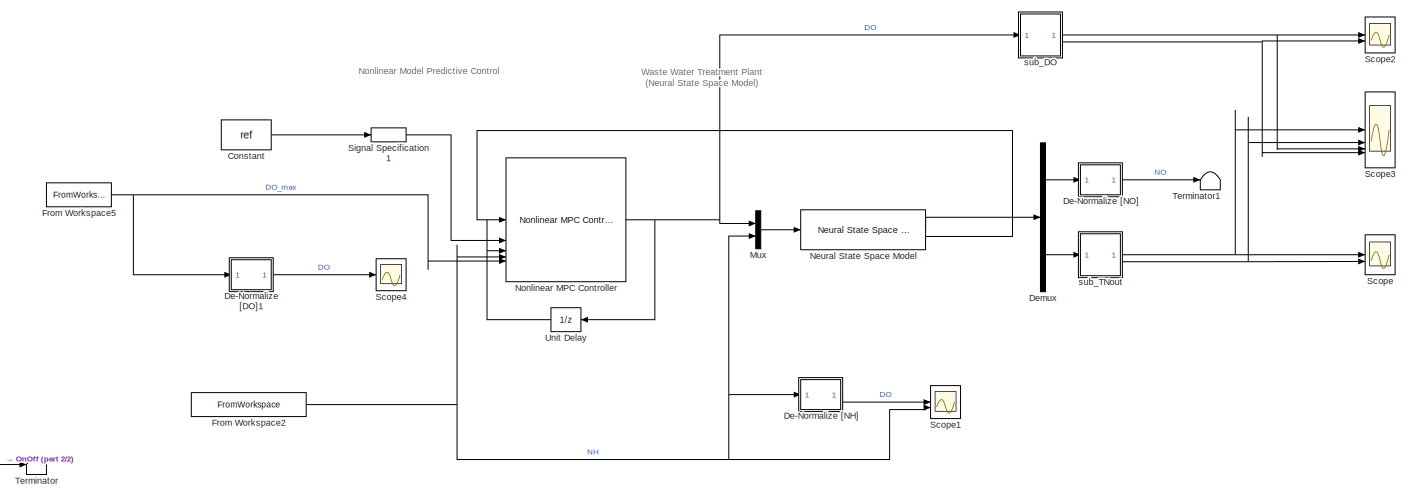
[diagram: root canvas - part 1/2, most of the canvas]
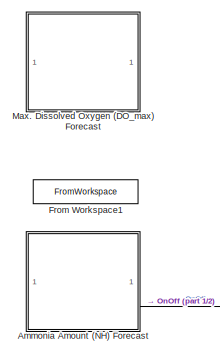
[diagram: root canvas - part 2/2, middle left region]
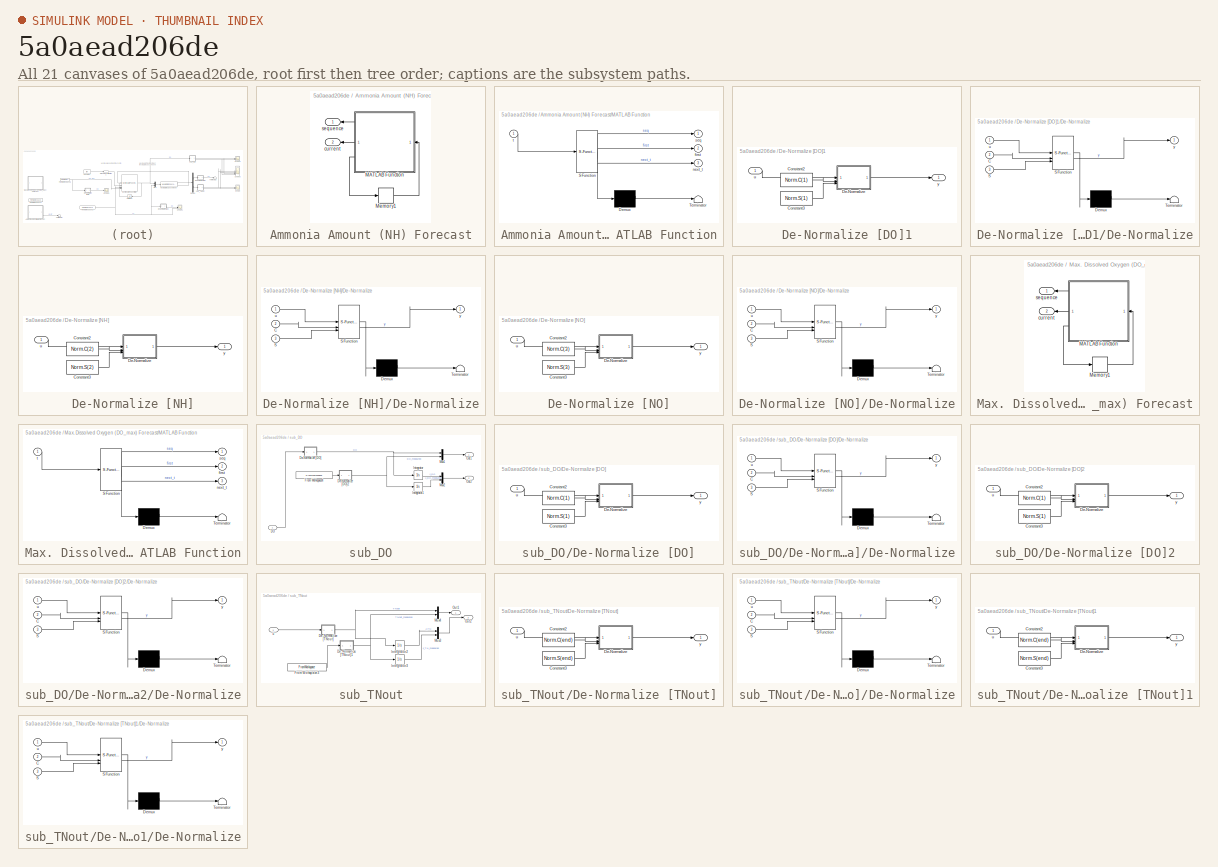
[diagram: thumbnail index - all 21 canvases of the model, root first then tree order]
MODEL slx_5a0aead206de
KIND model
CONFIG AbsTol = auto
CONFIG EnableMultiTasking = off
CONFIG FixedStep = Ts
CONFIG InitFcn = Init_Model;
CONFIG MaxStep = auto
CONFIG MinStep = auto
CONFIG RelTol = 1e-3
CONFIG SampleTimeConstraint = Unconstrained
CONFIG SolverName = ode5
CONFIG StartFcn = Init_Model;
CONFIG StartTime = 0
CONFIG StopTime = 7
BLOCK [SubSystem] Ammonia Amount (NH) Forecast
  Commented = on
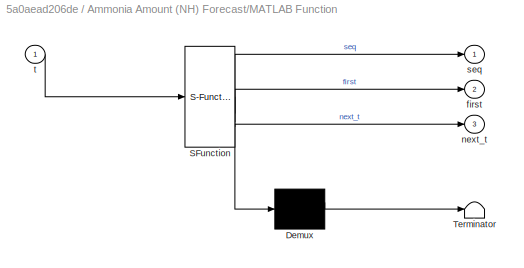
BLOCK [SubSystem] Ammonia Amount (NH) Forecast/MATLAB Function
  ErrorFcn = Stateflow.Translate.translate
  PermitHierarchicalResolution = ExplicitOnly
  SFBlockType = MATLAB Function
  TreatAsAtomicUnit = on
BLOCK [Demux] Ammonia Amount (NH) Forecast/MATLAB Function/ Demux 
  Outputs = 1
BLOCK [S-Function] Ammonia Amount (NH) Forecast/MATLAB Function/ SFunction 
  EnableBusSupport = on
  FunctionName = sf_sfun
  Parameters = data,steps
  PortCounts = [1 4]
  SFcnIsStateOwnerBlock = off
  SFunctionDeploymentMode = off
  Tag = Stateflow S-Function 6
BLOCK [Terminator] Ammonia Amount (NH) Forecast/MATLAB Function/ Terminator 
BLOCK [Outport] Ammonia Amount (NH) Forecast/MATLAB Function/first
  Port = 2
  VectorParamsAs1DForOutWhenUnconnected = off
BLOCK [Outport] Ammonia Amount (NH) Forecast/MATLAB Function/next_t
  Port = 3
  VectorParamsAs1DForOutWhenUnconnected = off
BLOCK [Outport] Ammonia Amount (NH) Forecast/MATLAB Function/seq
  VectorParamsAs1DForOutWhenUnconnected = off
BLOCK [Inport] Ammonia Amount (NH) Forecast/MATLAB Function/t
BLOCK [Memory] Ammonia Amount (NH) Forecast/Memory1
  InheritSampleTime = on
  LinearizeAsDelay = on
BLOCK [Outport] Ammonia Amount (NH) Forecast/current
  Port = 2
  VectorParamsAs1DForOutWhenUnconnected = off
BLOCK [Outport] Ammonia Amount (NH) Forecast/sequence
  VectorParamsAs1DForOutWhenUnconnected = off
BLOCK [Constant] Constant
  Value = ref
BLOCK [SubSystem] De-Normalize [DO]1
BLOCK [Constant] De-Normalize [DO]1/Constant2
  Value = Norm.C(1)
BLOCK [Constant] De-Normalize [DO]1/Constant3
  Value = Norm.S(1)
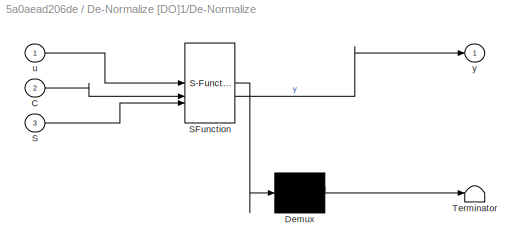
BLOCK [SubSystem] De-Normalize [DO]1/De-Normalize
  ErrorFcn = Stateflow.Translate.translate
  PermitHierarchicalResolution = ExplicitOnly
  SFBlockType = MATLAB Function
  TreatAsAtomicUnit = on
BLOCK [Demux] De-Normalize [DO]1/De-Normalize/ Demux 
  Outputs = 1
BLOCK [S-Function] De-Normalize [DO]1/De-Normalize/ SFunction 
  EnableBusSupport = on
  FunctionName = sf_sfun
  PortCounts = [3 2]
  SFcnIsStateOwnerBlock = off
  SFunctionDeploymentMode = off
  Tag = Stateflow S-Function 10
BLOCK [Terminator] De-Normalize [DO]1/De-Normalize/ Terminator 
BLOCK [Inport] De-Normalize [DO]1/De-Normalize/C
  Port = 2
BLOCK [Inport] De-Normalize [DO]1/De-Normalize/S
  Port = 3
BLOCK [Inport] De-Normalize [DO]1/De-Normalize/u
BLOCK [Outport] De-Normalize [DO]1/De-Normalize/y
BLOCK [Inport] De-Normalize [DO]1/u
BLOCK [Outport] De-Normalize [DO]1/y
BLOCK [SubSystem] De-Normalize [NH]
BLOCK [Constant] De-Normalize [NH]/Constant2
  Value = Norm.C(2)
BLOCK [Constant] De-Normalize [NH]/Constant3
  Value = Norm.S(2)
BLOCK [SubSystem] De-Normalize [NH]/De-Normalize
  ErrorFcn = Stateflow.Translate.translate
  PermitHierarchicalResolution = ExplicitOnly
  SFBlockType = MATLAB Function
  TreatAsAtomicUnit = on
BLOCK [Demux] De-Normalize [NH]/De-Normalize/ Demux 
  Outputs = 1
BLOCK [S-Function] De-Normalize [NH]/De-Normalize/ SFunction 
  EnableBusSupport = on
  FunctionName = sf_sfun
  PortCounts = [3 2]
  SFcnIsStateOwnerBlock = off
  SFunctionDeploymentMode = off
  Tag = Stateflow S-Function 9
BLOCK [Terminator] De-Normalize [NH]/De-Normalize/ Terminator 
BLOCK [Inport] De-Normalize [NH]/De-Normalize/C
  Port = 2
BLOCK [Inport] De-Normalize [NH]/De-Normalize/S
  Port = 3
BLOCK [Inport] De-Normalize [NH]/De-Normalize/u
BLOCK [Outport] De-Normalize [NH]/De-Normalize/y
BLOCK [Inport] De-Normalize [NH]/u
BLOCK [Outport] De-Normalize [NH]/y
BLOCK [SubSystem] De-Normalize [NO]
BLOCK [Constant] De-Normalize [NO]/Constant2
  Value = Norm.C(3)
BLOCK [Constant] De-Normalize [NO]/Constant3
  Value = Norm.S(3)
BLOCK [SubSystem] De-Normalize [NO]/De-Normalize
  ErrorFcn = Stateflow.Translate.translate
  PermitHierarchicalResolution = ExplicitOnly
  SFBlockType = MATLAB Function
  TreatAsAtomicUnit = on
BLOCK [Demux] De-Normalize [NO]/De-Normalize/ Demux 
  Outputs = 1
BLOCK [S-Function] De-Normalize [NO]/De-Normalize/ SFunction 
  EnableBusSupport = on
  FunctionName = sf_sfun
  PortCounts = [3 2]
  SFcnIsStateOwnerBlock = off
  SFunctionDeploymentMode = off
  Tag = Stateflow S-Function 1
BLOCK [Terminator] De-Normalize [NO]/De-Normalize/ Terminator 
BLOCK [Inport] De-Normalize [NO]/De-Normalize/C
  Port = 2
BLOCK [Inport] De-Normalize [NO]/De-Normalize/S
  Port = 3
BLOCK [Inport] De-Normalize [NO]/De-Normalize/u
BLOCK [Outport] De-Normalize [NO]/De-Normalize/y
BLOCK [Inport] De-Normalize [NO]/u
BLOCK [Outport] De-Normalize [NO]/y
BLOCK [Demux] Demux
  Outputs = 2
BLOCK [FromWorkspace] From Workspace1
  Commented = on
  VariableName = [DataRep(:,1),NH_simpl]
BLOCK [FromWorkspace] From Workspace2
  VariableName = [DataRep(:,1),DataRep(:,3)]
BLOCK [FromWorkspace] From Workspace5
  VariableName = DOMAX
BLOCK [SubSystem] Max. Dissolved Oxygen (DO_max) Forecast
  Commented = on
BLOCK [SubSystem] Max. Dissolved Oxygen (DO_max) Forecast/MATLAB Function
  ErrorFcn = Stateflow.Translate.translate
  PermitHierarchicalResolution = ExplicitOnly
  SFBlockType = MATLAB Function
  TreatAsAtomicUnit = on
BLOCK [Demux] Max. Dissolved Oxygen (DO_max) Forecast/MATLAB Function/ Demux 
  Outputs = 1
BLOCK [S-Function] Max. Dissolved Oxygen (DO_max) Forecast/MATLAB Function/ SFunction 
  EnableBusSupport = on
  FunctionName = sf_sfun
  Parameters = data,steps
  PortCounts = [1 4]
  SFcnIsStateOwnerBlock = off
  SFunctionDeploymentMode = off
  Tag = Stateflow S-Function 5
BLOCK [Terminator] Max. Dissolved Oxygen (DO_max) Forecast/MATLAB Function/ Terminator 
BLOCK [Outport] Max. Dissolved Oxygen (DO_max) Forecast/MATLAB Function/first
  Port = 2
  VectorParamsAs1DForOutWhenUnconnected = off
BLOCK [Outport] Max. Dissolved Oxygen (DO_max) Forecast/MATLAB Function/next_t
  Port = 3
  VectorParamsAs1DForOutWhenUnconnected = off
BLOCK [Outport] Max. Dissolved Oxygen (DO_max) Forecast/MATLAB Function/seq
  VectorParamsAs1DForOutWhenUnconnected = off
BLOCK [Inport] Max. Dissolved Oxygen (DO_max) Forecast/MATLAB Function/t
BLOCK [Memory] Max. Dissolved Oxygen (DO_max) Forecast/Memory1
  InheritSampleTime = on
  LinearizeAsDelay = on
BLOCK [Outport] Max. Dissolved Oxygen (DO_max) Forecast/current
  Port = 2
  VectorParamsAs1DForOutWhenUnconnected = off
BLOCK [Outport] Max. Dissolved Oxygen (DO_max) Forecast/sequence
  VectorParamsAs1DForOutWhenUnconnected = off
BLOCK [Mux] Mux
  DisplayOption = bar
  Inputs = 2
BLOCK [Reference] Neural State Space Model  REF=slident/Models/Neural State Space Model  (lib defined in mdl_f7d4911ca73a)
  SourceBlock = slident/Models/Neural State Space Model
  SourceType = Neural State Space Model
BLOCK [Reference] Nonlinear MPC Controller  REF=mpclib/Nonlinear MPC Controller  (lib defined in mdl_ae329e0e0455)
  SourceBlock = mpclib/Nonlinear MPC Controller
  SourceType = NonlinearMPC
BLOCK [Scope] Scope
  Floating = off
  NumInputPorts = 2
  ScopeSpecificationString = Simulink.scopes.TimeScopeBlockCfg('CurrentConfiguration', extmgr.ConfigurationSet(extmgr.Configuration('Core','General UI',true),extmgr.Configuration('Core','Source UI',true),extmgr.Configuration('Sources','WiredSimulink',true),extmgr.Configuration('Visuals','Time Domain',true,'SerializedDisplays',{struct('MinYLimReal','-0.39441','MaxYLimReal','11.53651','YLabelReal','','MinYLimMag','0.00000','Max...<+2156ch>
BLOCK [Scope] Scope1
  Floating = off
  NumInputPorts = 2
  ScopeSpecificationString = Simulink.scopes.TimeScopeBlockCfg('CurrentConfiguration', extmgr.ConfigurationSet(extmgr.Configuration('Core','General UI',true),extmgr.Configuration('Core','Source UI',true),extmgr.Configuration('Sources','WiredSimulink',true,'DataLoggingVariableName','ScopeData2'),extmgr.Configuration('Visuals','Time Domain',true,'SerializedDisplays',{struct('MinYLimReal','0.84076','MaxYLimReal','7.25364','YLabe...<+1389ch>
BLOCK [Scope] Scope2
  Floating = off
  NumInputPorts = 2
  ScopeSpecificationString = Simulink.scopes.TimeScopeBlockCfg('CurrentConfiguration', extmgr.ConfigurationSet(extmgr.Configuration('Core','General UI',true),extmgr.Configuration('Core','Source UI',true),extmgr.Configuration('Sources','WiredSimulink',true,'DataLoggingVariableName','ScopeData1'),extmgr.Configuration('Visuals','Time Domain',true,'SerializedDisplays',{struct('MinYLimReal','-0.4474','MaxYLimReal','10.58402','YLab...<+2117ch>
BLOCK [Scope] Scope3
  Floating = off
  NumInputPorts = 4
  ScopeSpecificationString = Simulink.scopes.TimeScopeBlockCfg('CurrentConfiguration', extmgr.ConfigurationSet(extmgr.Configuration('Core','General UI',true),extmgr.Configuration('Core','Source UI',true),extmgr.Configuration('Sources','WiredSimulink',true,'DataLoggingVariableName','ScopeData1'),extmgr.Configuration('Visuals','Time Domain',true,'SerializedDisplays',{struct('MinYLimReal','3.55202','MaxYLimReal','9.14814','YLabe...<+3876ch>
BLOCK [Scope] Scope4
  Floating = off
  NumInputPorts = 1
  ScopeSpecificationString = Simulink.scopes.TimeScopeBlockCfg('CurrentConfiguration', extmgr.ConfigurationSet(extmgr.Configuration('Core','General UI',true),extmgr.Configuration('Core','Source UI',true),extmgr.Configuration('Sources','WiredSimulink',true,'DataLoggingVariableName','ScopeData2'),extmgr.Configuration('Visuals','Time Domain',true,'SerializedDisplays',{struct('MinYLimReal','-1.23875','MaxYLimReal','11.24875','YLa...<+1384ch>
BLOCK [SignalSpecification] Signal Specification1
  Dimensions = [1,2]
BLOCK [Terminator] Terminator
  Commented = on
BLOCK [Terminator] Terminator1
BLOCK [UnitDelay] Unit Delay
  HasFrameUpgradeWarning = on
  SampleTime = -1
BLOCK [SubSystem] sub_DO
BLOCK [Inport] sub_DO/DO
BLOCK [SubSystem] sub_DO/De-Normalize [DO]
BLOCK [Constant] sub_DO/De-Normalize [DO]/Constant2
  Value = Norm.C(1)
BLOCK [Constant] sub_DO/De-Normalize [DO]/Constant3
  Value = Norm.S(1)
BLOCK [SubSystem] sub_DO/De-Normalize [DO]/De-Normalize
  ErrorFcn = Stateflow.Translate.translate
  PermitHierarchicalResolution = ExplicitOnly
  SFBlockType = MATLAB Function
  TreatAsAtomicUnit = on
BLOCK [Demux] sub_DO/De-Normalize [DO]/De-Normalize/ Demux 
  Outputs = 1
BLOCK [S-Function] sub_DO/De-Normalize [DO]/De-Normalize/ SFunction 
  EnableBusSupport = on
  FunctionName = sf_sfun
  PortCounts = [3 2]
  SFcnIsStateOwnerBlock = off
  SFunctionDeploymentMode = off
  Tag = Stateflow S-Function 2
BLOCK [Terminator] sub_DO/De-Normalize [DO]/De-Normalize/ Terminator 
BLOCK [Inport] sub_DO/De-Normalize [DO]/De-Normalize/C
  Port = 2
BLOCK [Inport] sub_DO/De-Normalize [DO]/De-Normalize/S
  Port = 3
BLOCK [Inport] sub_DO/De-Normalize [DO]/De-Normalize/u
BLOCK [Outport] sub_DO/De-Normalize [DO]/De-Normalize/y
BLOCK [Inport] sub_DO/De-Normalize [DO]/u
BLOCK [Outport] sub_DO/De-Normalize [DO]/y
BLOCK [SubSystem] sub_DO/De-Normalize [DO]2
BLOCK [Constant] sub_DO/De-Normalize [DO]2/Constant2
  Value = Norm.C(1)
BLOCK [Constant] sub_DO/De-Normalize [DO]2/Constant3
  Value = Norm.S(1)
BLOCK [SubSystem] sub_DO/De-Normalize [DO]2/De-Normalize
  ErrorFcn = Stateflow.Translate.translate
  PermitHierarchicalResolution = ExplicitOnly
  SFBlockType = MATLAB Function
  TreatAsAtomicUnit = on
BLOCK [Demux] sub_DO/De-Normalize [DO]2/De-Normalize/ Demux 
  Outputs = 1
BLOCK [S-Function] sub_DO/De-Normalize [DO]2/De-Normalize/ SFunction 
  EnableBusSupport = on
  FunctionName = sf_sfun
  PortCounts = [3 2]
  SFcnIsStateOwnerBlock = off
  SFunctionDeploymentMode = off
  Tag = Stateflow S-Function 12
BLOCK [Terminator] sub_DO/De-Normalize [DO]2/De-Normalize/ Terminator 
BLOCK [Inport] sub_DO/De-Normalize [DO]2/De-Normalize/C
  Port = 2
BLOCK [Inport] sub_DO/De-Normalize [DO]2/De-Normalize/S
  Port = 3
BLOCK [Inport] sub_DO/De-Normalize [DO]2/De-Normalize/u
BLOCK [Outport] sub_DO/De-Normalize [DO]2/De-Normalize/y
BLOCK [Inport] sub_DO/De-Normalize [DO]2/u
BLOCK [Outport] sub_DO/De-Normalize [DO]2/y
BLOCK [FromWorkspace] sub_DO/From Workspace4
  VariableName = [DataRep(:,1),DataRep(:,2)]
BLOCK [Integrator] sub_DO/Integrator
BLOCK [Integrator] sub_DO/Integrator1
BLOCK [Mux] sub_DO/Mux1
  DisplayOption = bar
  Inputs = 2
BLOCK [Mux] sub_DO/Mux2
  DisplayOption = bar
  Inputs = 2
BLOCK [Outport] sub_DO/Out1
BLOCK [Outport] sub_DO/Out2
  Port = 2
BLOCK [SubSystem] sub_TNout
BLOCK [SubSystem] sub_TNout/De-Normalize [TNout]
BLOCK [Constant] sub_TNout/De-Normalize [TNout]/Constant2
  Value = Norm.C(end)
BLOCK [Constant] sub_TNout/De-Normalize [TNout]/Constant3
  Value = Norm.S(end)
BLOCK [SubSystem] sub_TNout/De-Normalize [TNout]/De-Normalize
  ErrorFcn = Stateflow.Translate.translate
  PermitHierarchicalResolution = ExplicitOnly
  SFBlockType = MATLAB Function
  TreatAsAtomicUnit = on
BLOCK [Demux] sub_TNout/De-Normalize [TNout]/De-Normalize/ Demux 
  Outputs = 1
BLOCK [S-Function] sub_TNout/De-Normalize [TNout]/De-Normalize/ SFunction 
  EnableBusSupport = on
  FunctionName = sf_sfun
  PortCounts = [3 2]
  SFcnIsStateOwnerBlock = off
  SFunctionDeploymentMode = off
  Tag = Stateflow S-Function 3
BLOCK [Terminator] sub_TNout/De-Normalize [TNout]/De-Normalize/ Terminator 
BLOCK [Inport] sub_TNout/De-Normalize [TNout]/De-Normalize/C
  Port = 2
BLOCK [Inport] sub_TNout/De-Normalize [TNout]/De-Normalize/S
  Port = 3
BLOCK [Inport] sub_TNout/De-Normalize [TNout]/De-Normalize/u
BLOCK [Outport] sub_TNout/De-Normalize [TNout]/De-Normalize/y
BLOCK [Inport] sub_TNout/De-Normalize [TNout]/u
BLOCK [Outport] sub_TNout/De-Normalize [TNout]/y
BLOCK [SubSystem] sub_TNout/De-Normalize [TNout]1
BLOCK [Constant] sub_TNout/De-Normalize [TNout]1/Constant2
  Value = Norm.C(end)
BLOCK [Constant] sub_TNout/De-Normalize [TNout]1/Constant3
  Value = Norm.S(end)
BLOCK [SubSystem] sub_TNout/De-Normalize [TNout]1/De-Normalize
  ErrorFcn = Stateflow.Translate.translate
  PermitHierarchicalResolution = ExplicitOnly
  SFBlockType = MATLAB Function
  TreatAsAtomicUnit = on
BLOCK [Demux] sub_TNout/De-Normalize [TNout]1/De-Normalize/ Demux 
  Outputs = 1
BLOCK [S-Function] sub_TNout/De-Normalize [TNout]1/De-Normalize/ SFunction 
  EnableBusSupport = on
  FunctionName = sf_sfun
  PortCounts = [3 2]
  SFcnIsStateOwnerBlock = off
  SFunctionDeploymentMode = off
  Tag = Stateflow S-Function 11
BLOCK [Terminator] sub_TNout/De-Normalize [TNout]1/De-Normalize/ Terminator 
BLOCK [Inport] sub_TNout/De-Normalize [TNout]1/De-Normalize/C
  Port = 2
BLOCK [Inport] sub_TNout/De-Normalize [TNout]1/De-Normalize/S
  Port = 3
BLOCK [Inport] sub_TNout/De-Normalize [TNout]1/De-Normalize/u
BLOCK [Outport] sub_TNout/De-Normalize [TNout]1/De-Normalize/y
BLOCK [Inport] sub_TNout/De-Normalize [TNout]1/u
BLOCK [Outport] sub_TNout/De-Normalize [TNout]1/y
BLOCK [FromWorkspace] sub_TNout/From Workspace3
  VariableName = [DataRep(:,1),DataRep(:,end)]
BLOCK [Integrator] sub_TNout/Integrator2
BLOCK [Integrator] sub_TNout/Integrator3
BLOCK [Mux] sub_TNout/Mux3
  DisplayOption = bar
  Inputs = 2
BLOCK [Mux] sub_TNout/Mux4
  DisplayOption = bar
  Inputs = 2
BLOCK [Outport] sub_TNout/Out1
BLOCK [Outport] sub_TNout/Out2
  Port = 2
BLOCK [Inport] sub_TNout/u
ANNOTATION (root): Nonlinear Model Predictive Control
ANNOTATION (root): Waste Water Treatment Plant (Neural State Space Model)
LINE Ammonia Amount (NH) Forecast/MATLAB Function:1 -> Ammonia Amount (NH) Forecast/sequence:1
LINE Ammonia Amount (NH) Forecast/MATLAB Function:2 -> Ammonia Amount (NH) Forecast/current:1
LINE Ammonia Amount (NH) Forecast/MATLAB Function:3 -> Ammonia Amount (NH) Forecast/Memory1:1
LINE Ammonia Amount (NH) Forecast/Memory1:1 -> Ammonia Amount (NH) Forecast/MATLAB Function:1
LINE Ammonia Amount (NH) Forecast:2 -> Terminator:1
LINE Constant:1 -> Signal Specification1:1
LINE De-Normalize [DO]1/Constant2:1 -> De-Normalize [DO]1/De-Normalize:2
LINE De-Normalize [DO]1/Constant3:1 -> De-Normalize [DO]1/De-Normalize:3
LINE De-Normalize [DO]1/De-Normalize:1 -> De-Normalize [DO]1/y:1
LINE De-Normalize [DO]1/u:1 -> De-Normalize [DO]1/De-Normalize:1
LINE De-Normalize [DO]1:1 -> Scope4:1
LINE De-Normalize [NH]/Constant2:1 -> De-Normalize [NH]/De-Normalize:2
LINE De-Normalize [NH]/Constant3:1 -> De-Normalize [NH]/De-Normalize:3
LINE De-Normalize [NH]/De-Normalize:1 -> De-Normalize [NH]/y:1
LINE De-Normalize [NH]/u:1 -> De-Normalize [NH]/De-Normalize:1
LINE De-Normalize [NH]:1 -> Scope1:1
LINE De-Normalize [NO]/Constant2:1 -> De-Normalize [NO]/De-Normalize:2
LINE De-Normalize [NO]/Constant3:1 -> De-Normalize [NO]/De-Normalize:3
LINE De-Normalize [NO]/De-Normalize:1 -> De-Normalize [NO]/y:1
LINE De-Normalize [NO]/u:1 -> De-Normalize [NO]/De-Normalize:1
LINE De-Normalize [NO]:1 -> Terminator1:1
LINE Demux:1 -> De-Normalize [NO]:1
LINE Demux:2 -> sub_TNout:1
NET From Workspace2:1 -> De-Normalize [NH]:1, Mux:2, Nonlinear MPC Controller:4, Scope1:2
NET From Workspace5:1 -> De-Normalize [DO]1:1, Nonlinear MPC Controller:5
LINE Max. Dissolved Oxygen (DO_max) Forecast/MATLAB Function:1 -> Max. Dissolved Oxygen (DO_max) Forecast/sequence:1
LINE Max. Dissolved Oxygen (DO_max) Forecast/MATLAB Function:2 -> Max. Dissolved Oxygen (DO_max) Forecast/current:1
LINE Max. Dissolved Oxygen (DO_max) Forecast/MATLAB Function:3 -> Max. Dissolved Oxygen (DO_max) Forecast/Memory1:1
LINE Max. Dissolved Oxygen (DO_max) Forecast/Memory1:1 -> Max. Dissolved Oxygen (DO_max) Forecast/MATLAB Function:1
LINE Mux:1 -> Neural State Space Model:1
LINE Neural State Space Model:1 -> Demux:1
LINE Neural State Space Model:2 -> Nonlinear MPC Controller:1
NET Nonlinear MPC Controller:1 -> Mux:1, Unit Delay:1, sub_DO:1
LINE Signal Specification1:1 -> Nonlinear MPC Controller:2
LINE Unit Delay:1 -> Nonlinear MPC Controller:3
LINE sub_DO/DO:1 -> sub_DO/De-Normalize [DO]:1
LINE sub_DO/De-Normalize [DO]/Constant2:1 -> sub_DO/De-Normalize [DO]/De-Normalize:2
LINE sub_DO/De-Normalize [DO]/Constant3:1 -> sub_DO/De-Normalize [DO]/De-Normalize:3
LINE sub_DO/De-Normalize [DO]/De-Normalize:1 -> sub_DO/De-Normalize [DO]/y:1
LINE sub_DO/De-Normalize [DO]/u:1 -> sub_DO/De-Normalize [DO]/De-Normalize:1
LINE sub_DO/De-Normalize [DO]2/Constant2:1 -> sub_DO/De-Normalize [DO]2/De-Normalize:2
LINE sub_DO/De-Normalize [DO]2/Constant3:1 -> sub_DO/De-Normalize [DO]2/De-Normalize:3
LINE sub_DO/De-Normalize [DO]2/De-Normalize:1 -> sub_DO/De-Normalize [DO]2/y:1
LINE sub_DO/De-Normalize [DO]2/u:1 -> sub_DO/De-Normalize [DO]2/De-Normalize:1
NET sub_DO/De-Normalize [DO]2:1 -> sub_DO/Integrator1:1, sub_DO/Mux1:2
NET sub_DO/De-Normalize [DO]:1 -> sub_DO/Integrator:1, sub_DO/Mux1:1
LINE sub_DO/From Workspace4:1 -> sub_DO/De-Normalize [DO]2:1
LINE sub_DO/Integrator1:1 -> sub_DO/Mux2:2
LINE sub_DO/Integrator:1 -> sub_DO/Mux2:1
LINE sub_DO/Mux1:1 -> sub_DO/Out1:1
LINE sub_DO/Mux2:1 -> sub_DO/Out2:1
NET sub_DO:1 -> Scope2:1, Scope3:3
NET sub_DO:2 -> Scope2:2, Scope3:4
LINE sub_TNout/De-Normalize [TNout]/Constant2:1 -> sub_TNout/De-Normalize [TNout]/De-Normalize:2
LINE sub_TNout/De-Normalize [TNout]/Constant3:1 -> sub_TNout/De-Normalize [TNout]/De-Normalize:3
LINE sub_TNout/De-Normalize [TNout]/De-Normalize:1 -> sub_TNout/De-Normalize [TNout]/y:1
LINE sub_TNout/De-Normalize [TNout]/u:1 -> sub_TNout/De-Normalize [TNout]/De-Normalize:1
LINE sub_TNout/De-Normalize [TNout]1/Constant2:1 -> sub_TNout/De-Normalize [TNout]1/De-Normalize:2
LINE sub_TNout/De-Normalize [TNout]1/Constant3:1 -> sub_TNout/De-Normalize [TNout]1/De-Normalize:3
LINE sub_TNout/De-Normalize [TNout]1/De-Normalize:1 -> sub_TNout/De-Normalize [TNout]1/y:1
LINE sub_TNout/De-Normalize [TNout]1/u:1 -> sub_TNout/De-Normalize [TNout]1/De-Normalize:1
NET sub_TNout/De-Normalize [TNout]1:1 -> sub_TNout/Integrator3:1, sub_TNout/Mux4:2
NET sub_TNout/De-Normalize [TNout]:1 -> sub_TNout/Integrator2:1, sub_TNout/Mux4:1
LINE sub_TNout/From Workspace3:1 -> sub_TNout/De-Normalize [TNout]1:1
LINE sub_TNout/Integrator2:1 -> sub_TNout/Mux3:1
LINE sub_TNout/Integrator3:1 -> sub_TNout/Mux3:2
LINE sub_TNout/Mux3:1 -> sub_TNout/Out2:1
LINE sub_TNout/Mux4:1 -> sub_TNout/Out1:1
LINE sub_TNout/u:1 -> sub_TNout/De-Normalize [TNout]:1
NET sub_TNout:1 -> Scope3:1, Scope:1
NET sub_TNout:2 -> Scope3:2, Scope:2
note: NET lines group one-source signal fan-out (src -> all destinations, sorted); 1:1 wires keep LINE
CHART De-Normalize [NO]/De-Normalize states=1 transitions=1
  STATE_LABEL 'eML_blk_kernel()'
  STATE_LABEL 'SCRIPT:\nfunction y = fcn(u,C,S)\n\ny = u * S + C;\n\nend'
CHART sub_DO/De-Normalize [DO]/De-Normalize states=1 transitions=1
  STATE_LABEL 'eML_blk_kernel()'
  STATE_LABEL 'SCRIPT:\nfunction y = fcn(u,C,S)\n\ny = u * S + C;\n\nend'
CHART sub_TNout/De-Normalize [TNout]/De-Normalize states=1 transitions=1
  STATE_LABEL 'eML_blk_kernel()'
  STATE_LABEL 'SCRIPT:\nfunction y = fcn(u,C,S)\n\ny = u * S + C;\n\nend'
CHART Max. Dissolved Oxygen (DO_max)
Forecast/MATLAB Function states=1 transitions=1
  STATE_LABEL 'eML_blk_kernel()'
  STATE_LABEL "SCRIPT:\nfunction [seq,first,next_t] = fcn(data,steps,t)\n%#codegen\n[seq,first,next_t] = mpcblock_preview('md',data,steps,t);"
CHART Ammonia Amount (NH)
Forecast/MATLAB Function states=1 transitions=1
  STATE_LABEL 'eML_blk_kernel()'
  STATE_LABEL "SCRIPT:\nfunction [seq,first,next_t] = fcn(data,steps,t)\n%#codegen\n[seq,first,next_t] = mpcblock_preview('md',data,steps,t);"
CHART De-Normalize [NH]/De-Normalize states=1 transitions=1
  STATE_LABEL 'eML_blk_kernel()'
  STATE_LABEL 'SCRIPT:\nfunction y = fcn(u,C,S)\n\ny = u * S + C;\n\nend'
CHART De-Normalize [DO]1/De-Normalize states=1 transitions=1
  STATE_LABEL 'eML_blk_kernel()'
  STATE_LABEL 'SCRIPT:\nfunction y = fcn(u,C,S)\n\ny = u * S + C;\n\nend'
CHART sub_TNout/De-Normalize [TNout]1/De-Normalize states=1 transitions=1
  STATE_LABEL 'eML_blk_kernel()'
  STATE_LABEL 'SCRIPT:\nfunction y = fcn(u,C,S)\n\ny = u * S + C;\n\nend'
CHART sub_DO/De-Normalize [DO]2/De-Normalize states=1 transitions=1
  STATE_LABEL 'eML_blk_kernel()'
  STATE_LABEL 'SCRIPT:\nfunction y = fcn(u,C,S)\n\ny = u * S + C;\n\nend'
CHART  states=0 transitions=0
CHART  states=0 transitions=0
CHART  states=0 transitions=0
CHART  states=0 transitions=0
CHART  states=0 transitions=0
CHART  states=0 transitions=0
CHART  states=0 transitions=0
CHART  states=0 transitions=0
CHART  states=0 transitions=0
